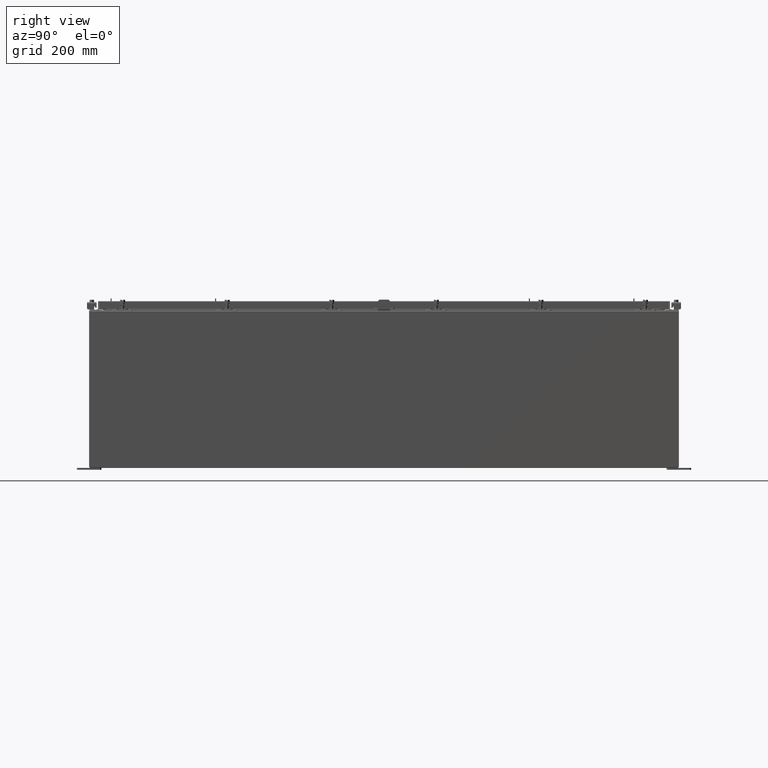
[diagram: clean part render]
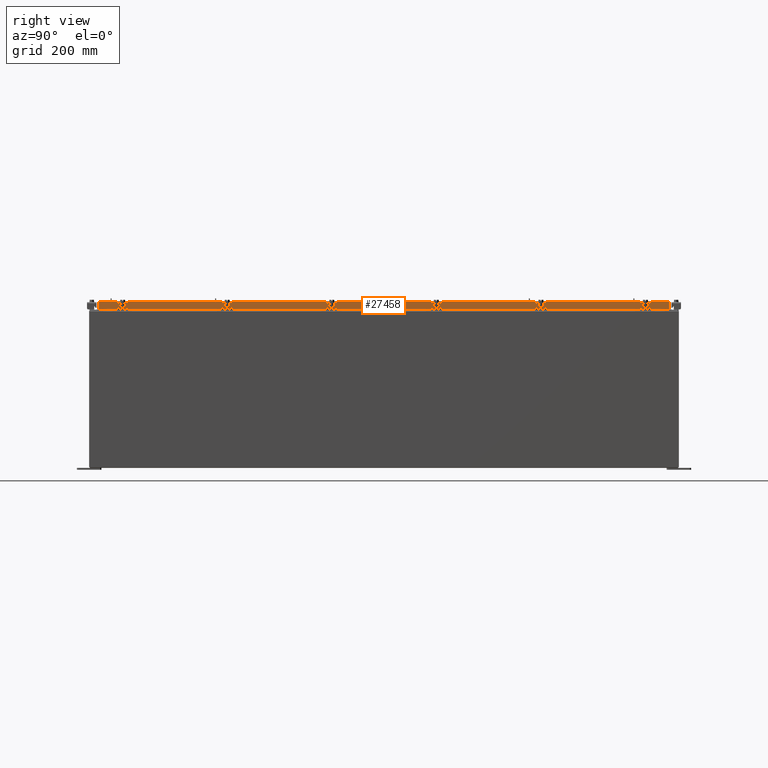
[diagram: same view with one face highlighted and labeled with its STEP entity id]
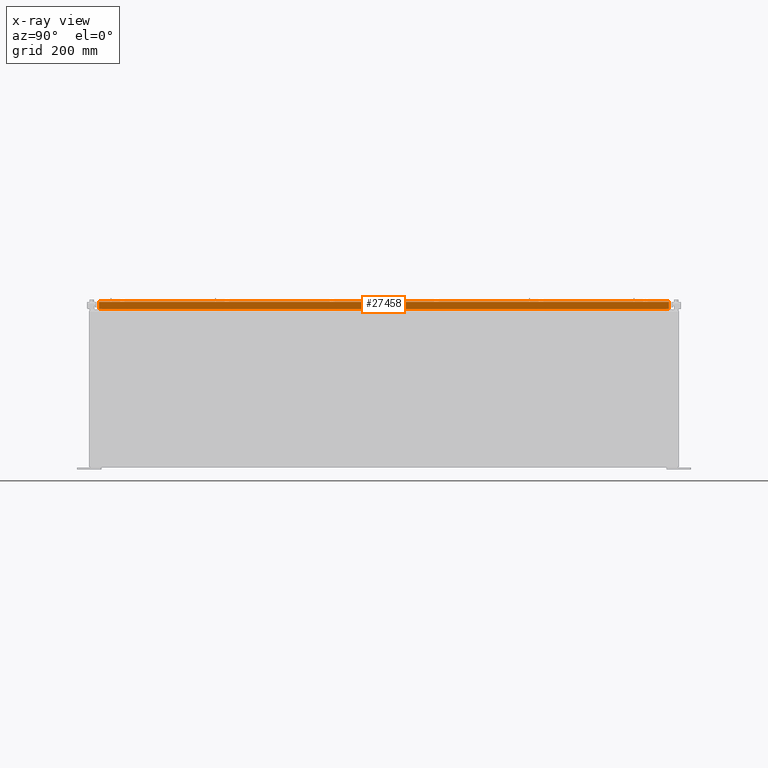
[diagram: x-ray of the same camera — body ghosted, the highlighted face saturated]
A machine part, right view. The second image highlights one B-rep face of the part: STEP entity #27458.
The next image is the same camera in x-ray: the body ghosted, the highlighted face saturated — about 0% of this face is hidden behind the body in this view.
In plain terms, the highlighted planar face has unit normal (1, 0, 0).
Its self-contained STEP definition (entity closure, byte-faithful):
#275 = ORIENTED_EDGE ( 'NONE', *, *, #2356, .F. ) ;
#385 = DIRECTION ( 'NONE',  ( 2.818880942772360100E-015, 0.0000000000000000000, -1.000000000000000000 ) ) ;
#397 = CARTESIAN_POINT ( 'NONE',  ( 17.07800000000000700, -29.09400000000000500, -0.8499999999999996400 ) ) ;
#2356 = EDGE_CURVE ( 'NONE', #25451, #15826, #22824, .T. ) ;
#2830 = LINE ( 'NONE', #397, #13488 ) ;
#2930 = CARTESIAN_POINT ( 'NONE',  ( 17.07800000000000700, -29.09400000000000500, -0.8499999999999996400 ) ) ;
#3071 = CARTESIAN_POINT ( 'NONE',  ( 17.07800000000000700, -29.00515786437626500, -0.8499999999999996400 ) ) ;
#4587 = EDGE_CURVE ( 'NONE', #20207, #7398, #26322, .T. ) ;
#4623 = DIRECTION ( 'NONE',  ( 0.0000000000000000000, -1.000000000000000000, 0.0000000000000000000 ) ) ;
#6974 = LINE ( 'NONE', #7615, #25349 ) ;
#7398 = VERTEX_POINT ( 'NONE', #24118 ) ;
#7615 = CARTESIAN_POINT ( 'NONE',  ( 17.07800000000000300, 0.0000000000000000000, -0.08770000000000007000 ) ) ;
#7863 = EDGE_CURVE ( 'NONE', #9104, #21809, #15500, .T. ) ;
#8636 = ORIENTED_EDGE ( 'NONE', *, *, #4587, .T. ) ;
#8755 = CARTESIAN_POINT ( 'NONE',  ( 17.07799999999998500, 28.25515786437626500, -0.8500000000000016400 ) ) ;
#9104 = VERTEX_POINT ( 'NONE', #26382 ) ;
#9763 = ORIENTED_EDGE ( 'NONE', *, *, #24705, .F. ) ;
#10481 = VECTOR ( 'NONE', #21565, 39.37007874015748100 ) ;
#11014 = VECTOR ( 'NONE', #17856, 39.37007874015748100 ) ;
#11346 = CARTESIAN_POINT ( 'NONE',  ( 17.07800000000000300, -29.00515786437627200, -0.07469999999999978000 ) ) ;
#11651 = CARTESIAN_POINT ( 'NONE',  ( 17.07800000000000700, 29.00515786437627200, -0.8499999999999996400 ) ) ;
#11806 = CARTESIAN_POINT ( 'NONE',  ( 17.07800000000000300, 29.00515786437626500, 2.509435972240157400E-013 ) ) ;
#12111 = VECTOR ( 'NONE', #26279, 39.37007874015748100 ) ;
#13123 = DIRECTION ( 'NONE',  ( 1.000000000000000000, 0.0000000000000000000, 2.818880942772360100E-015 ) ) ;
#13488 = VECTOR ( 'NONE', #4623, 39.37007874015748100 ) ;
#13492 = ORIENTED_EDGE ( 'NONE', *, *, #7863, .F. ) ;
#13510 = EDGE_LOOP ( 'NONE', ( #275, #9763, #13492, #15482, #8636, #22112 ) ) ;
#13685 = AXIS2_PLACEMENT_3D ( 'NONE', #23769, #13123, #385 ) ;
#14108 = EDGE_CURVE ( 'NONE', #20207, #9104, #2830, .T. ) ;
#15482 = ORIENTED_EDGE ( 'NONE', *, *, #14108, .F. ) ;
#15490 = CARTESIAN_POINT ( 'NONE',  ( 17.07799999999998500, -28.25515786437626500, -0.8500000000000016400 ) ) ;
#15500 = LINE ( 'NONE', #8755, #10481 ) ;
#15826 = VERTEX_POINT ( 'NONE', #26602 ) ;
#17856 = DIRECTION ( 'NONE',  ( 0.0000000000000000000, -1.000000000000000000, 0.0000000000000000000 ) ) ;
#18187 = FACE_OUTER_BOUND ( 'NONE', #13510, .T. ) ;
#18308 = DIRECTION ( 'NONE',  ( 0.0000000000000000000, -1.000000000000000000, 0.0000000000000000000 ) ) ;
#20207 = VERTEX_POINT ( 'NONE', #11651 ) ;
#21040 = LINE ( 'NONE', #2930, #11014 ) ;
#21565 = DIRECTION ( 'NONE',  ( 0.0000000000000000000, -1.000000000000000000, 0.0000000000000000000 ) ) ;
#21809 = VERTEX_POINT ( 'NONE', #15490 ) ;
#22001 = VECTOR ( 'NONE', #26725, 39.37007874015748100 ) ;
#22112 = ORIENTED_EDGE ( 'NONE', *, *, #24870, .T. ) ;
#22824 = LINE ( 'NONE', #11346, #12111 ) ;
#23769 = CARTESIAN_POINT ( 'NONE',  ( 17.07800000000000300, 0.0000000000000000000, 4.840166239667796000E-014 ) ) ;
#24118 = CARTESIAN_POINT ( 'NONE',  ( 17.07800000000000300, 29.00515786437626500, -0.08770000000000007000 ) ) ;
#24705 = EDGE_CURVE ( 'NONE', #21809, #25451, #21040, .T. ) ;
#24870 = EDGE_CURVE ( 'NONE', #7398, #15826, #6974, .T. ) ;
#25349 = VECTOR ( 'NONE', #18308, 39.37007874015748100 ) ;
#25451 = VERTEX_POINT ( 'NONE', #3071 ) ;
#25908 = PLANE ( 'NONE',  #13685 ) ;
#26279 = DIRECTION ( 'NONE',  ( -2.818880942772360100E-015, -6.982962677686265900E-015, 1.000000000000000000 ) ) ;
#26322 = LINE ( 'NONE', #11806, #22001 ) ;
#26382 = CARTESIAN_POINT ( 'NONE',  ( 17.07799999999998500, 28.25515786437626500, -0.8500000000000016400 ) ) ;
#26602 = CARTESIAN_POINT ( 'NONE',  ( 17.07800000000000300, -29.00515786437627200, -0.08770000000000007000 ) ) ;
#26725 = DIRECTION ( 'NONE',  ( -2.818880942772360100E-015, -6.982962677686265900E-015, 1.000000000000000000 ) ) ;
#27458 = ADVANCED_FACE ( 'NONE', ( #18187 ), #25908, .T. ) ;